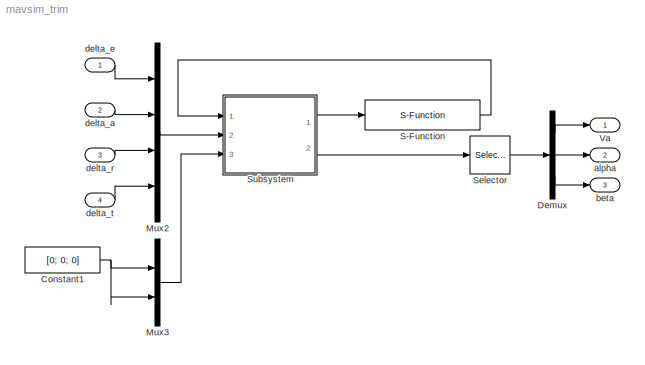
MODEL mavsim_trim
KIND model
CONFIG InitFcn = param_mavsim
BLOCK [Constant] Constant1
  SID = 67
  Value = [0; 0; 0]
BLOCK [Demux] Demux
  DisplayOption = bar
  Outputs = 3
  Ports = [1, 3]
  SID = 132
BLOCK [Mux] Mux2
  DisplayOption = bar
  Ports = [4, 1]
  SID = 66
BLOCK [Mux] Mux3
  DisplayOption = bar
  Inputs = 2
  Ports = [2, 1]
  SID = 68
BLOCK [S-Function] S-Function
  EnableBusSupport = off
  FunctionName = mav_dynamics_mavsim
  Parameters = P
  Ports = [1, 1]
  SFcnIsStateOwnerBlock = off
  SFunctionDeploymentMode = off
  SID = 40
BLOCK [Selector] Selector
  IndexOptions = Index vector (dialog)
  Indices = [1 2 3]
  InputPortWidth = 6
  OutputSizes = 1
  Ports = [1, 1]
  SID = 133
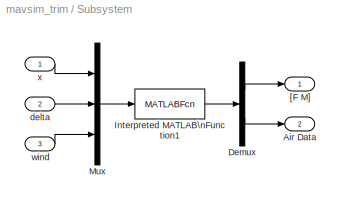
BLOCK [SubSystem] Subsystem
  Ports = [3, 2]
  RequestExecContextInheritance = off
  SID = 120
  Variant = off
BLOCK [Outport] Subsystem/Air Data
  IconDisplay = Port number
  Port = 2
  SID = 127
BLOCK [Demux] Subsystem/Demux
  DisplayOption = bar
  Outputs = [6;6]
  Ports = [1, 2]
  SID = 126
BLOCK [MATLABFcn] Subsystem/Interpreted MATLAB\nFunction1
  MATLABFcn = forces_moments(u(1:12),u(13:16),u(17:22),P)
  Ports = [1, 1]
  SID = 64
BLOCK [Mux] Subsystem/Mux
  DisplayOption = bar
  Inputs = 3
  Ports = [3, 1]
  SID = 65
BLOCK [Outport] Subsystem/[F M]
  IconDisplay = Port number
  SID = 124
BLOCK [Inport] Subsystem/delta
  IconDisplay = Port number
  Port = 2
  SID = 123
BLOCK [Inport] Subsystem/wind
  IconDisplay = Port number
  Port = 3
  SID = 125
BLOCK [Inport] Subsystem/x
  IconDisplay = Port number
  SID = 121
BLOCK [Outport] Va
  IconDisplay = Port number
  SID = 134
BLOCK [Outport] alpha
  IconDisplay = Port number
  Port = 2
  SID = 135
BLOCK [Outport] beta
  IconDisplay = Port number
  Port = 3
  SID = 136
BLOCK [Inport] delta_a
  IconDisplay = Port number
  Port = 2
  SID = 129
BLOCK [Inport] delta_e
  IconDisplay = Port number
  SID = 128
BLOCK [Inport] delta_r
  IconDisplay = Port number
  Port = 3
  SID = 130
BLOCK [Inport] delta_t
  IconDisplay = Port number
  Port = 4
  SID = 131
NET Constant1:1 -> Mux3:1, Mux3:2
LINE Demux:1 -> Va:1
LINE Demux:2 -> alpha:1
LINE Demux:3 -> beta:1
LINE Mux2:1 -> Subsystem:2
LINE Mux3:1 -> Subsystem:3
LINE S-Function:1 -> Subsystem:1
LINE Selector:1 -> Demux:1
LINE Subsystem/Demux:1 -> Subsystem/[F M]:1
LINE Subsystem/Demux:2 -> Subsystem/Air Data:1
LINE Subsystem/Interpreted MATLAB\nFunction1:1 -> Subsystem/Demux:1
LINE Subsystem/Mux:1 -> Subsystem/Interpreted MATLAB\nFunction1:1
LINE Subsystem/delta:1 -> Subsystem/Mux:2
LINE Subsystem/wind:1 -> Subsystem/Mux:3
LINE Subsystem/x:1 -> Subsystem/Mux:1
LINE Subsystem:1 -> S-Function:1
LINE Subsystem:2 -> Selector:1
LINE delta_a:1 -> Mux2:2
LINE delta_e:1 -> Mux2:1
LINE delta_r:1 -> Mux2:3
LINE delta_t:1 -> Mux2:4
note: NET lines group one-source signal fan-out (src -> all destinations, sorted); 1:1 wires keep LINE
